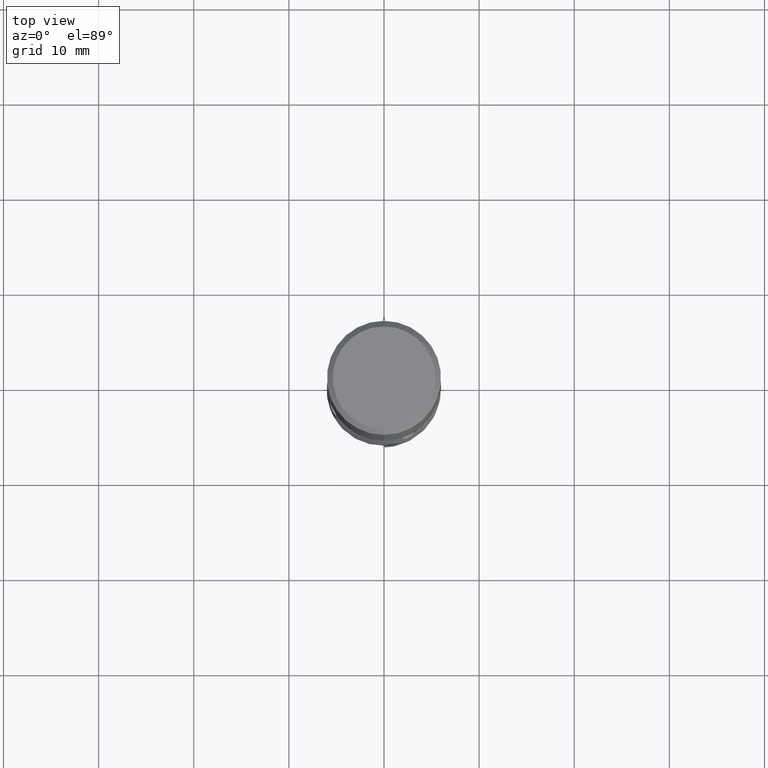
[diagram: clean part render]
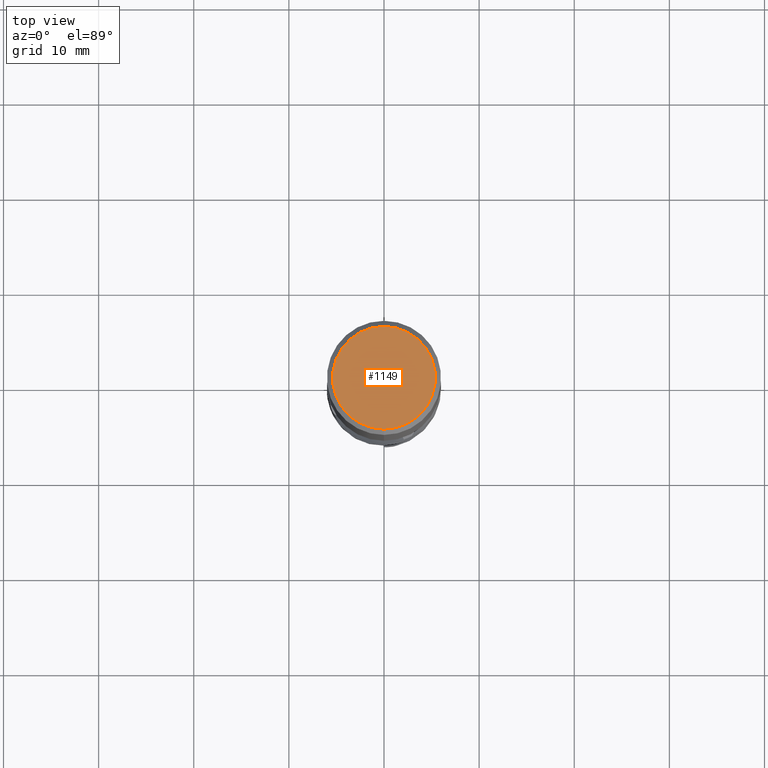
[diagram: same view with one face highlighted and labeled with its STEP entity id]
A machine part, top view. The second image highlights one B-rep face of the part: STEP entity #1149.
In plain terms, the highlighted planar face has unit normal (-0, 0, 1).
Its self-contained STEP definition (entity closure, byte-faithful):
#725=VERTEX_POINT('',#1699);
#853=VERTEX_POINT('',#1841);
#1149=ADVANCED_FACE('',(#2164),#2165,.T.);
#1225=EDGE_CURVE('',#853,#725,#2251,.T.);
#1343=EDGE_CURVE('',#725,#853,#2377,.T.);
#1699=CARTESIAN_POINT('',(6.61287431064084E-016,-5.4,0.0));
#1841=CARTESIAN_POINT('',(0.0,5.4,0.0));
#2164=FACE_OUTER_BOUND('',#8329,.T.);
#2165=PLANE('',#8330);
#2251=CIRCLE('',#8943,5.4);
#2377=CIRCLE('',#9853,5.4);
#8329=EDGE_LOOP('',(#11402,#11403));
#8330=AXIS2_PLACEMENT_3D('',#11404,#11405,#11406);
#8943=AXIS2_PLACEMENT_3D('',#11535,#11536,#11537);
#9853=AXIS2_PLACEMENT_3D('',#11627,#11628,#11629);
#11402=ORIENTED_EDGE('',*,*,#1225,.F.);
#11403=ORIENTED_EDGE('',*,*,#1343,.F.);
#11404=CARTESIAN_POINT('',(0.0,2.7,0.0));
#11405=DIRECTION('',(-0.0,0.0,1.0));
#11406=DIRECTION('',(0.0,-1.0,0.0));
#11535=CARTESIAN_POINT('',(0.0,0.0,0.0));
#11536=DIRECTION('',(0.0,0.0,-1.0));
#11537=DIRECTION('',(0.0,1.0,0.0));
#11627=CARTESIAN_POINT('',(0.0,0.0,0.0));
#11628=DIRECTION('',(0.0,0.0,-1.0));
#11629=DIRECTION('',(0.0,1.0,0.0));